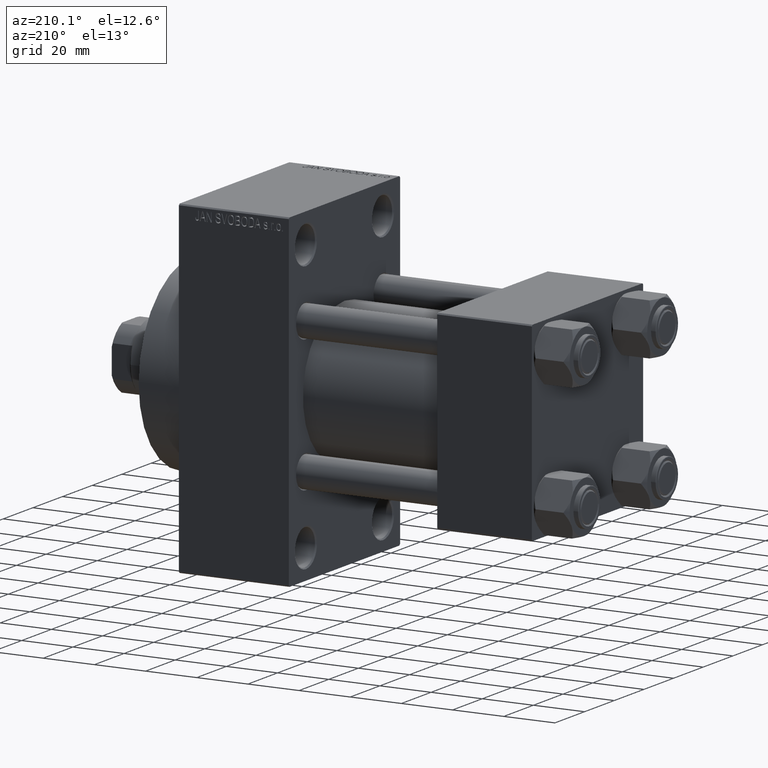
[diagram: clean part render]
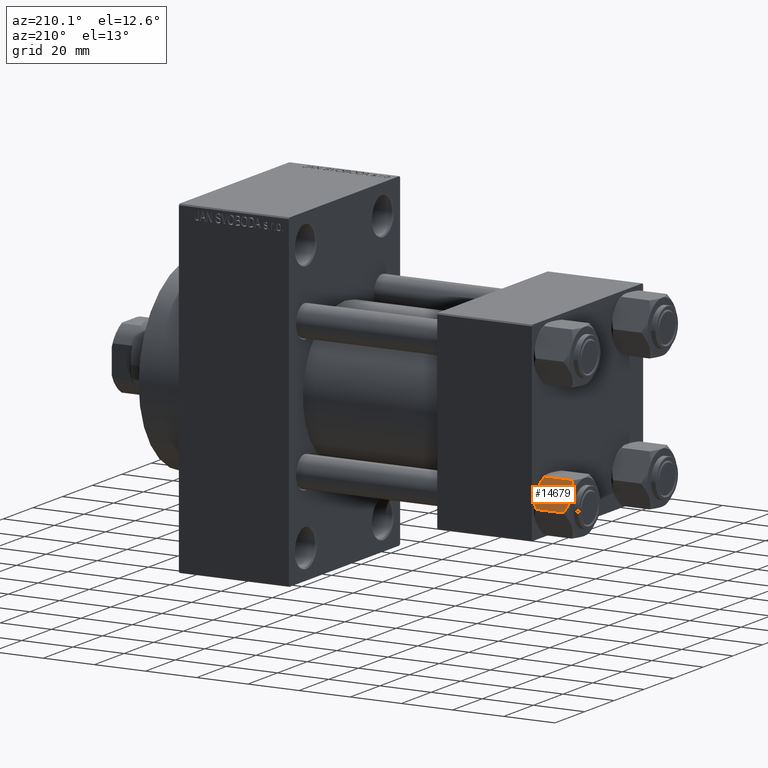
[diagram: same view with one face highlighted and labeled with its STEP entity id]
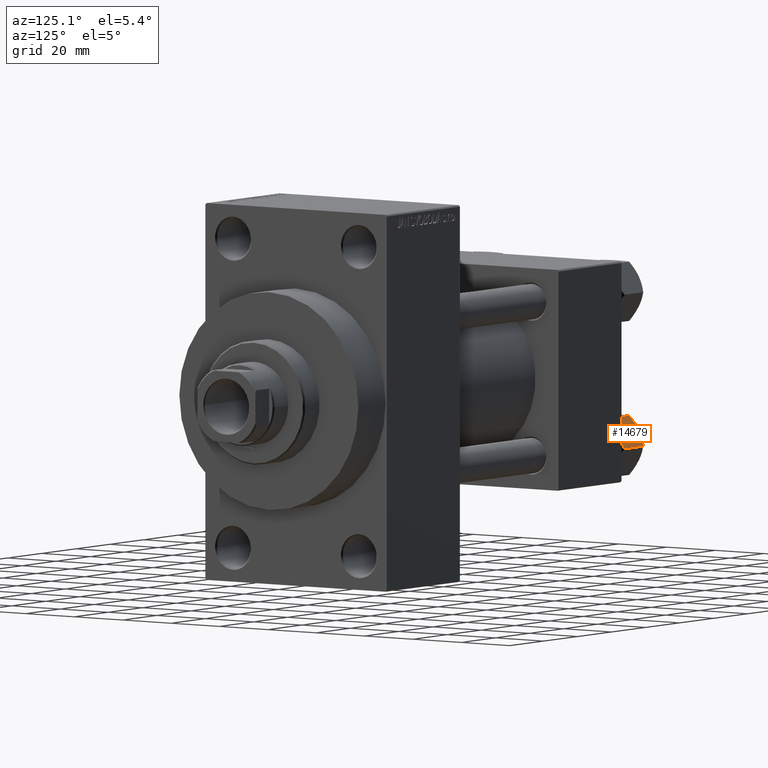
[diagram: same view with one face highlighted and labeled with its STEP entity id]
A machine part, auxiliary view. The second image highlights one B-rep face of the part: STEP entity #14679.
A second angle (auxiliary view) of the same face is appended — the face is thin or edge-on in the first view.
In plain terms, the highlighted planar face has unit normal (0, -0.866, -0.5).
Its self-contained STEP definition (entity closure, byte-faithful):
#829 = CARTESIAN_POINT ( 'NONE',  ( -8.715000000000003411, 5.031607595987592774, -14.00000000000000000 ) ) ;
#1116 = VERTEX_POINT ( 'NONE', #3662 ) ;
#1422 = VERTEX_POINT ( 'NONE', #8075 ) ;
#1582 = CARTESIAN_POINT ( 'NONE',  ( -11.61999999999999922, 6.288644352490894150E-15, -14.00000000000000000 ) ) ;
#3641 = ORIENTED_EDGE ( 'NONE', *, *, #42420, .F. ) ;
#3662 = CARTESIAN_POINT ( 'NONE',  ( -8.715000000000003411, 5.031607595987592774, 0.000000000000000000 ) ) ;
#3705 = ORIENTED_EDGE ( 'NONE', *, *, #25019, .F. ) ;
#5476 = CARTESIAN_POINT ( 'NONE',  ( -8.715000000000003411, 5.031607595987592774, -14.00000000000000000 ) ) ;
#5572 = EDGE_CURVE ( 'NONE', #1116, #5691, #45174, .T. ) ;
#5691 = VERTEX_POINT ( 'NONE', #27414 ) ;
#6691 = CARTESIAN_POINT ( 'NONE',  ( -5.809999999999997833, 10.06321519197518022, -1.556784808024814115 ) ) ;
#7267 = CARTESIAN_POINT ( 'NONE',  ( -11.61999999999999922, 6.270720075409452187E-15, -1.556784808024810562 ) ) ;
#8075 = CARTESIAN_POINT ( 'NONE',  ( -5.809999999999997833, 10.06321519197518022, -12.44321519197518633 ) ) ;
#8234 = CARTESIAN_POINT ( 'NONE',  ( -11.16445427487471420, 0.7890283410878028425, -12.89876091710047490 ) ) ;
#9217 = CARTESIAN_POINT ( 'NONE',  ( -9.227666995912100489, 4.143642311704128112, -13.96005881939309212 ) ) ;
#10262 = CARTESIAN_POINT ( 'NONE',  ( -10.69662495661650148, 1.599332489581337668, -0.7114554706434472742 ) ) ;
#12075 = ORIENTED_EDGE ( 'NONE', *, *, #5572, .F. ) ;
#12338 = B_SPLINE_CURVE_WITH_KNOTS ( 'NONE', 3,
 ( #19869, #16118, #35054, #47251, #31560, #43523, #16606, #24577 ),
 .UNSPECIFIED., .F., .F.,
 ( 4, 2, 2, 4 ),
 ( 2.544312114902182352E-07, 0.003011550106433540791, 0.004517197944044565316, 0.006022845781655589842 ),
 .UNSPECIFIED. ) ;
#12886 = EDGE_CURVE ( 'NONE', #39561, #18455, #25065, .T. ) ;
#13108 = VECTOR ( 'NONE', #43461, 1000.000000000000000 ) ;
#13168 = CARTESIAN_POINT ( 'NONE',  ( -8.715000000000003411, 5.031607595987592774, -14.00000000000000000 ) ) ;
#13194 = CARTESIAN_POINT ( 'NONE',  ( -11.61999999999999922, 6.270720075510426383E-15, -12.44321519197518988 ) ) ;
#14485 = CARTESIAN_POINT ( 'NONE',  ( -9.716999946243694453, 3.296092779912229265, -0.1545239700039824915 ) ) ;
#14679 = ADVANCED_FACE ( 'NONE', ( #47201 ), #39487, .F. ) ;
#16118 = CARTESIAN_POINT ( 'NONE',  ( -6.265545725125282850, 9.274186850887385702, -1.101239082899533539 ) ) ;
#16606 = CARTESIAN_POINT ( 'NONE',  ( -8.460569896449618099, 5.472293462311865753, 3.939644352451667145E-15 ) ) ;
#17598 = B_SPLINE_CURVE_WITH_KNOTS ( 'NONE', 3,
 ( #13168, #17631, #28600, #28111, #36067, #28356 ),
 .UNSPECIFIED., .F., .F.,
 ( 4, 2, 4 ),
 ( 0.006022845781655582903, 0.009013049135303629819, 0.01200325248895167674 ),
 .UNSPECIFIED. ) ;
#17631 = CARTESIAN_POINT ( 'NONE',  ( -8.209704053696567527, 5.906805847843728863, -14.00000000000000355 ) ) ;
#18455 = VERTEX_POINT ( 'NONE', #829 ) ;
#18525 = ORIENTED_EDGE ( 'NONE', *, *, #25134, .F. ) ;
#19617 = ORIENTED_EDGE ( 'NONE', *, *, #35257, .T. ) ;
#19869 = CARTESIAN_POINT ( 'NONE',  ( -5.809999999999997833, 10.06321519197518022, -1.556784808024814115 ) ) ;
#22115 = VERTEX_POINT ( 'NONE', #6691 ) ;
#23639 = AXIS2_PLACEMENT_3D ( 'NONE', #43474, #39970, #35732 ) ;
#24174 = CARTESIAN_POINT ( 'NONE',  ( -10.69859855102500923, 1.595914123792268713, -13.28585617404753805 ) ) ;
#24577 = CARTESIAN_POINT ( 'NONE',  ( -8.715000000000003411, 5.031607595987592774, 0.000000000000000000 ) ) ;
#25019 = EDGE_CURVE ( 'NONE', #1422, #22115, #28061, .T. ) ;
#25065 = B_SPLINE_CURVE_WITH_KNOTS ( 'NONE', 3,
 ( #13194, #8234, #24174, #47338, #27657, #9217, #43365, #5476 ),
 .UNSPECIFIED., .F., .F.,
 ( 4, 2, 2, 4 ),
 ( 2.544312114905218436E-07, 0.003011550106433537322, 0.004517197944044560112, 0.006022845781655582903 ),
 .UNSPECIFIED. ) ;
#25134 = EDGE_CURVE ( 'NONE', #22115, #1116, #12338, .T. ) ;
#27414 = CARTESIAN_POINT ( 'NONE',  ( -11.61999999999999922, 6.270720075409452187E-15, -1.556784808024810562 ) ) ;
#27657 = CARTESIAN_POINT ( 'NONE',  ( -9.729165168613654657, 3.275021996682086378, -13.80960203119266261 ) ) ;
#27829 = CARTESIAN_POINT ( 'NONE',  ( -5.809999999999997833, 10.06321519197518022, -14.00000000000000000 ) ) ;
#28061 = LINE ( 'NONE', #27829, #44605 ) ;
#28111 = CARTESIAN_POINT ( 'NONE',  ( -6.733375043383497349, 8.463882702393844326, -13.28854452935655317 ) ) ;
#28356 = CARTESIAN_POINT ( 'NONE',  ( -5.809999999999997833, 10.06321519197518022, -12.44321519197518633 ) ) ;
#28600 = CARTESIAN_POINT ( 'NONE',  ( -7.713000053756306151, 6.767122412062953174, -13.84547602999602134 ) ) ;
#31156 = EDGE_LOOP ( 'NONE', ( #34343, #19617, #12075, #18525, #3705, #3641 ) ) ;
#31560 = CARTESIAN_POINT ( 'NONE',  ( -7.700834831386344170, 6.788193195293096949, -0.1903979688073401122 ) ) ;
#33171 = CARTESIAN_POINT ( 'NONE',  ( -9.220295946303428636, 4.156409344131455796, 3.796401669593772542E-15 ) ) ;
#34343 = ORIENTED_EDGE ( 'NONE', *, *, #12886, .F. ) ;
#35054 = CARTESIAN_POINT ( 'NONE',  ( -6.731401448974986934, 8.467301068182916168, -0.7141438259524646170 ) ) ;
#35257 = EDGE_CURVE ( 'NONE', #39561, #5691, #38735, .T. ) ;
#35732 = DIRECTION ( 'NONE',  ( 0.5000000000000001110, 0.8660254037844384856, 0.000000000000000000 ) ) ;
#35865 = CARTESIAN_POINT ( 'NONE',  ( -11.61999999999999922, 6.270720075510426383E-15, -12.44321519197518988 ) ) ;
#36067 = CARTESIAN_POINT ( 'NONE',  ( -6.265018354709773973, 9.275100283241455301, -12.89823354668504862 ) ) ;
#38735 = LINE ( 'NONE', #1582, #13108 ) ;
#39294 = DIRECTION ( 'NONE',  ( -0.000000000000000000, -0.000000000000000000, 1.000000000000000000 ) ) ;
#39487 = PLANE ( 'NONE',  #23639 ) ;
#39561 = VERTEX_POINT ( 'NONE', #35865 ) ;
#39970 = DIRECTION ( 'NONE',  ( 0.8660254037844385966, -0.5000000000000002220, 0.000000000000000000 ) ) ;
#42420 = EDGE_CURVE ( 'NONE', #18455, #1422, #17598, .T. ) ;
#43365 = CARTESIAN_POINT ( 'NONE',  ( -8.969430103550379840, 4.590921729663318018, -14.00000000000000355 ) ) ;
#43461 = DIRECTION ( 'NONE',  ( -0.000000000000000000, -0.000000000000000000, 1.000000000000000000 ) ) ;
#43474 = CARTESIAN_POINT ( 'NONE',  ( -11.61999999999999922, 6.288644352490894150E-15, -14.00000000000000000 ) ) ;
#43523 = CARTESIAN_POINT ( 'NONE',  ( -8.202333004087897450, 5.919572880271055659, -0.03994118060690620559 ) ) ;
#44416 = CARTESIAN_POINT ( 'NONE',  ( -8.715000000000003411, 5.031607595987592774, 0.000000000000000000 ) ) ;
#44605 = VECTOR ( 'NONE', #39294, 1000.000000000000000 ) ;
#44903 = CARTESIAN_POINT ( 'NONE',  ( -11.16498164529022219, 0.7881149087337359083, -1.101766453314949379 ) ) ;
#45174 = B_SPLINE_CURVE_WITH_KNOTS ( 'NONE', 3,
 ( #44416, #33171, #14485, #10262, #44903, #7267 ),
 .UNSPECIFIED., .F., .F.,
 ( 4, 2, 4 ),
 ( 0.006022845781655589842, 0.009013049135303633289, 0.01200325248895167674 ),
 .UNSPECIFIED. ) ;
#47201 = FACE_OUTER_BOUND ( 'NONE', #31156, .T. ) ;
#47251 = CARTESIAN_POINT ( 'NONE',  ( -7.455303369716805406, 7.213466161761384221, -0.3002673809867362764 ) ) ;
#47338 = CARTESIAN_POINT ( 'NONE',  ( -9.974696630283190757, 2.849749030213796885, -13.69973261901326111 ) ) ;